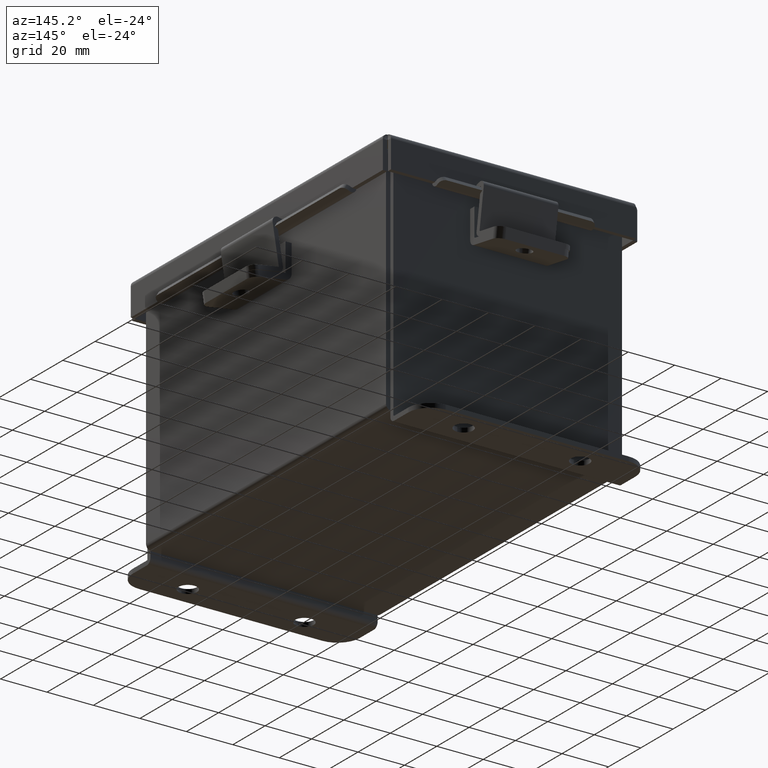
[diagram: clean part render]
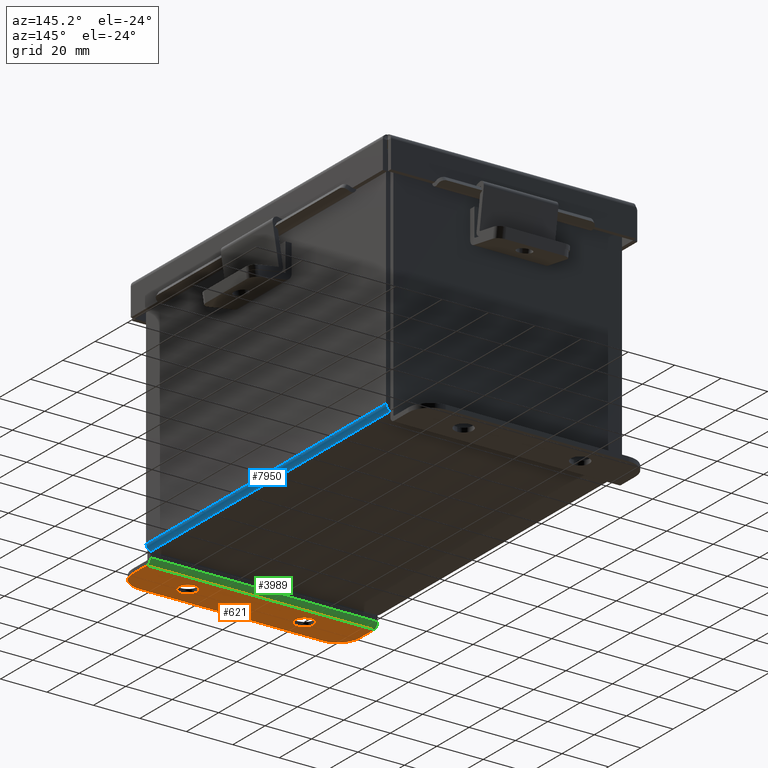
[diagram: same view with three faces highlighted in distinct colors, each labeled with its STEP entity id]
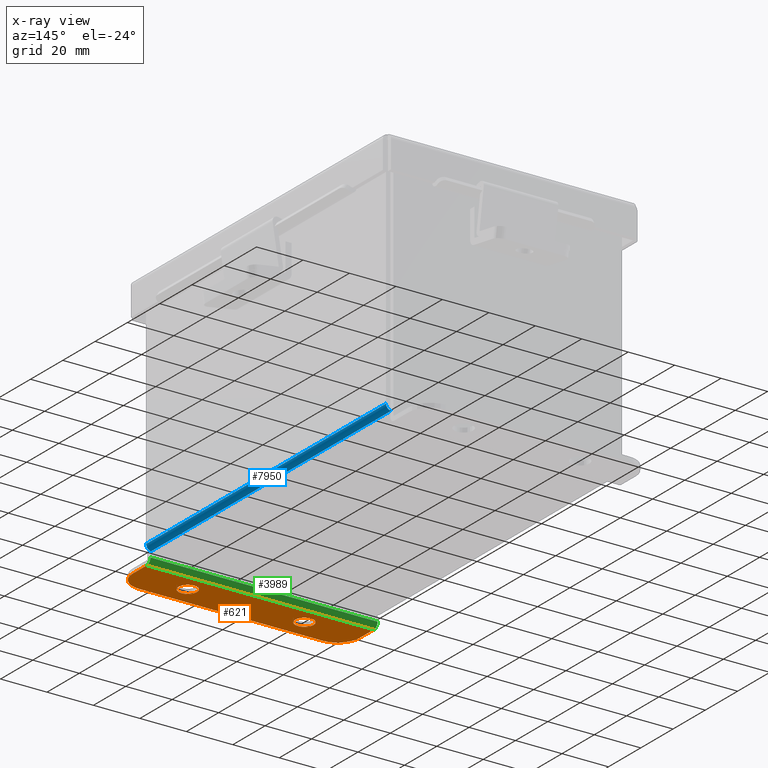
[diagram: x-ray of the same camera — body ghosted, the three highlighted faces saturated]
A machine part, auxiliary view with three faces highlighted in distinct colors.
The next image is the same camera in x-ray (body ghosted, the three faces saturated) — at least one of them is partly hidden behind the body in this view.
Their STEP definitions:

[orange] entity #621 — the highlighted planar face has unit normal (0, -0, 1).
#10 = AXIS2_PLACEMENT_3D ( 'NONE', #2350, #7556, #3093 ) ;
#343 = CARTESIAN_POINT ( 'NONE',  ( -0.9878000000000014500, 0.3628000000000008400, -2.187000000000003800 ) ) ;
#355 = EDGE_CURVE ( 'NONE', #8607, #3298, #492, .T. ) ;
#481 = DIRECTION ( 'NONE',  ( 0.0000000000000000000, 1.000000000000000000, -3.502369222646487000E-015 ) ) ;
#488 = CIRCLE ( 'NONE', #4836, 0.3750000000000000600 ) ;
#492 = CIRCLE ( 'NONE', #7430, 0.1560000000000001900 ) ;
#587 = ORIENTED_EDGE ( 'NONE', *, *, #4265, .T. ) ;
#609 = FACE_BOUND ( 'NONE', #774, .T. ) ;
#621 = ADVANCED_FACE ( 'NONE', ( #609, #4770, #6532 ), #8657, .F. ) ;
#774 = EDGE_LOOP ( 'NONE', ( #8233, #1580 ) ) ;
#1086 = DIRECTION ( 'NONE',  ( 0.0000000000000000000, 1.000000000000000000, -3.502369222646487000E-015 ) ) ;
#1104 = CARTESIAN_POINT ( 'NONE',  ( 1.925300000000000500, -2.185478394931410600E-015, -2.187000000000001200 ) ) ;
#1234 = LINE ( 'NONE', #2368, #6933 ) ;
#1336 = VERTEX_POINT ( 'NONE', #5147 ) ;
#1424 = EDGE_CURVE ( 'NONE', #9117, #3527, #488, .T. ) ;
#1425 = AXIS2_PLACEMENT_3D ( 'NONE', #1664, #6866, #2404 ) ;
#1482 = CARTESIAN_POINT ( 'NONE',  ( 1.925300000000000500, 0.3628000000000041200, -2.187000000000002100 ) ) ;
#1566 = ORIENTED_EDGE ( 'NONE', *, *, #2728, .T. ) ;
#1580 = ORIENTED_EDGE ( 'NONE', *, *, #1899, .F. ) ;
#1664 = CARTESIAN_POINT ( 'NONE',  ( -1.550299999999998500, 0.3628000000000002900, -2.187000000000003800 ) ) ;
#1899 = EDGE_CURVE ( 'NONE', #2493, #3293, #7099, .T. ) ;
#1969 = CARTESIAN_POINT ( 'NONE',  ( 0.0000000000000000000, -2.731847993664263200E-015, -2.187000000000000700 ) ) ;
#2350 = CARTESIAN_POINT ( 'NONE',  ( -0.9878000000000014500, 0.3628000000000008400, -2.187000000000003800 ) ) ;
#2361 = ORIENTED_EDGE ( 'NONE', *, *, #355, .F. ) ;
#2368 = CARTESIAN_POINT ( 'NONE',  ( 2.035385365534024800E-024, 0.7378000000000043400, -2.187000000000003400 ) ) ;
#2370 = EDGE_CURVE ( 'NONE', #3923, #1336, #9524, .T. ) ;
#2404 = DIRECTION ( 'NONE',  ( 0.0000000000000000000, -1.000000000000000000, 3.642463991552350200E-015 ) ) ;
#2406 = CARTESIAN_POINT ( 'NONE',  ( 1.550300000000000500, 0.7378000000000043400, -2.187000000000005600 ) ) ;
#2493 = VERTEX_POINT ( 'NONE', #5954 ) ;
#2523 = CARTESIAN_POINT ( 'NONE',  ( -1.925299999999999300, 0.3628000000000002900, -2.187000000000002100 ) ) ;
#2626 = CARTESIAN_POINT ( 'NONE',  ( -1.925299999999999300, -6.556435184794231700E-015, -2.187000000000000700 ) ) ;
#2680 = CARTESIAN_POINT ( 'NONE',  ( 0.9877999999999992300, 0.2068000000000039500, -2.187000000000003400 ) ) ;
#2728 = EDGE_CURVE ( 'NONE', #3527, #1336, #6730, .T. ) ;
#3032 = CARTESIAN_POINT ( 'NONE',  ( 1.550300000000000500, 0.3628000000000041200, -2.187000000000003800 ) ) ;
#3093 = DIRECTION ( 'NONE',  ( 0.0000000000000000000, 1.000000000000000000, -3.502369222646487000E-015 ) ) ;
#3167 = CARTESIAN_POINT ( 'NONE',  ( 0.9877999999999981200, 0.3628000000000041200, -2.187000000000003800 ) ) ;
#3293 = VERTEX_POINT ( 'NONE', #4920 ) ;
#3298 = VERTEX_POINT ( 'NONE', #2680 ) ;
#3527 = VERTEX_POINT ( 'NONE', #1482 ) ;
#3571 = EDGE_LOOP ( 'NONE', ( #2361, #4969 ) ) ;
#3696 = EDGE_CURVE ( 'NONE', #3293, #2493, #5663, .T. ) ;
#3771 = DIRECTION ( 'NONE',  ( 0.0000000000000000000, -1.000000000000000000, 3.642463991552350200E-015 ) ) ;
#3839 = DIRECTION ( 'NONE',  ( 1.000000000000000000, 4.910036603141682400E-031, 0.0000000000000000000 ) ) ;
#3916 = DIRECTION ( 'NONE',  ( 0.0000000000000000000, 1.000000000000000000, -3.502369222646487000E-015 ) ) ;
#3923 = VERTEX_POINT ( 'NONE', #6475 ) ;
#4161 = ORIENTED_EDGE ( 'NONE', *, *, #1424, .T. ) ;
#4205 = DIRECTION ( 'NONE',  ( -1.555753819465285400E-061, 3.332425039709726500E-015, 1.000000000000000000 ) ) ;
#4265 = EDGE_CURVE ( 'NONE', #8317, #9117, #1234, .T. ) ;
#4359 = AXIS2_PLACEMENT_3D ( 'NONE', #343, #5528, #1086 ) ;
#4770 = FACE_BOUND ( 'NONE', #3571, .T. ) ;
#4836 = AXIS2_PLACEMENT_3D ( 'NONE', #3032, #8234, #3771 ) ;
#4914 = DIRECTION ( 'NONE',  ( 0.0000000000000000000, -3.362274453740631800E-015, -1.000000000000000000 ) ) ;
#4920 = CARTESIAN_POINT ( 'NONE',  ( -0.9878000000000014500, 0.5188000000000010400, -2.187000000000004700 ) ) ;
#4969 = ORIENTED_EDGE ( 'NONE', *, *, #8754, .F. ) ;
#5100 = AXIS2_PLACEMENT_3D ( 'NONE', #9361, #4914, #481 ) ;
#5147 = CARTESIAN_POINT ( 'NONE',  ( 1.925300000000000500, 0.01300000000000393200, -2.187000000000002900 ) ) ;
#5219 = VECTOR ( 'NONE', #6925, 39.37007874015748100 ) ;
#5528 = DIRECTION ( 'NONE',  ( 0.0000000000000000000, -3.362274453740631800E-015, -1.000000000000000000 ) ) ;
#5598 = EDGE_CURVE ( 'NONE', #3923, #6208, #6137, .T. ) ;
#5663 = CIRCLE ( 'NONE', #4359, 0.1560000000000001900 ) ;
#5902 = VECTOR ( 'NONE', #7098, 39.37007874015748100 ) ;
#5954 = CARTESIAN_POINT ( 'NONE',  ( -0.9878000000000003400, 0.2068000000000006800, -2.187000000000003400 ) ) ;
#6079 = CIRCLE ( 'NONE', #5100, 0.1560000000000001900 ) ;
#6122 = CARTESIAN_POINT ( 'NONE',  ( 0.9877999999999981200, 0.5188000000000042600, -2.187000000000004700 ) ) ;
#6137 = LINE ( 'NONE', #2626, #5902 ) ;
#6208 = VERTEX_POINT ( 'NONE', #2523 ) ;
#6361 = ORIENTED_EDGE ( 'NONE', *, *, #5598, .T. ) ;
#6409 = AXIS2_PLACEMENT_3D ( 'NONE', #1969, #4205, #9403 ) ;
#6475 = CARTESIAN_POINT ( 'NONE',  ( -1.925299999999999300, 0.01300000000000065300, -2.187000000000000700 ) ) ;
#6532 = FACE_OUTER_BOUND ( 'NONE', #7835, .T. ) ;
#6641 = EDGE_CURVE ( 'NONE', #6208, #8317, #7627, .T. ) ;
#6730 = LINE ( 'NONE', #1104, #5219 ) ;
#6866 = DIRECTION ( 'NONE',  ( -0.0000000000000000000, -3.332425039709726500E-015, -1.000000000000000000 ) ) ;
#6925 = DIRECTION ( 'NONE',  ( -3.994427860841574400E-031, -1.000000000000000000, 3.332425039709726500E-015 ) ) ;
#6933 = VECTOR ( 'NONE', #3839, 39.37007874015748100 ) ;
#7098 = DIRECTION ( 'NONE',  ( 3.994427860841574400E-031, 1.000000000000000000, -3.332425039709726500E-015 ) ) ;
#7099 = CIRCLE ( 'NONE', #10, 0.1560000000000001900 ) ;
#7430 = AXIS2_PLACEMENT_3D ( 'NONE', #3167, #8376, #3916 ) ;
#7553 = VECTOR ( 'NONE', #8048, 39.37007874015748100 ) ;
#7556 = DIRECTION ( 'NONE',  ( 0.0000000000000000000, -3.362274453740631800E-015, -1.000000000000000000 ) ) ;
#7627 = CIRCLE ( 'NONE', #1425, 0.3750000000000000600 ) ;
#7835 = EDGE_LOOP ( 'NONE', ( #6361, #7948, #587, #4161, #1566, #8028 ) ) ;
#7948 = ORIENTED_EDGE ( 'NONE', *, *, #6641, .T. ) ;
#8028 = ORIENTED_EDGE ( 'NONE', *, *, #2370, .F. ) ;
#8048 = DIRECTION ( 'NONE',  ( 1.000000000000000000, 4.910036603141682400E-031, -0.0000000000000000000 ) ) ;
#8077 = CARTESIAN_POINT ( 'NONE',  ( 1.925300000000000500, 0.01300000000000447800, -2.187000000000002900 ) ) ;
#8233 = ORIENTED_EDGE ( 'NONE', *, *, #3696, .F. ) ;
#8234 = DIRECTION ( 'NONE',  ( -0.0000000000000000000, -3.332425039709726500E-015, -1.000000000000000000 ) ) ;
#8317 = VERTEX_POINT ( 'NONE', #8658 ) ;
#8376 = DIRECTION ( 'NONE',  ( 0.0000000000000000000, -3.362274453740631800E-015, -1.000000000000000000 ) ) ;
#8607 = VERTEX_POINT ( 'NONE', #6122 ) ;
#8657 = PLANE ( 'NONE',  #6409 ) ;
#8658 = CARTESIAN_POINT ( 'NONE',  ( -1.550299999999998500, 0.7378000000000000100, -2.187000000000003400 ) ) ;
#8754 = EDGE_CURVE ( 'NONE', #3298, #8607, #6079, .T. ) ;
#9117 = VERTEX_POINT ( 'NONE', #2406 ) ;
#9361 = CARTESIAN_POINT ( 'NONE',  ( 0.9877999999999981200, 0.3628000000000041200, -2.187000000000003800 ) ) ;
#9403 = DIRECTION ( 'NONE',  ( -3.994427860841588400E-031, -1.000000000000000000, 3.332425039709726500E-015 ) ) ;
#9524 = LINE ( 'NONE', #8077, #7553 ) ;

[blue] entity #7950 — the highlighted cylindrical surface (edge-blend (fillet) strip) has radius 2.2276 mm, axis along (0, 1, 0).
#130 = CARTESIAN_POINT ( 'NONE',  ( 1.912299999999999400, 2.925299999999999600, 0.01299999999999987600 ) ) ;
#290 = CYLINDRICAL_SURFACE ( 'NONE', #8162, 0.08770000000000000000 ) ;
#465 = DIRECTION ( 'NONE',  ( 0.0000000000000000000, 0.0000000000000000000, 1.000000000000000000 ) ) ;
#559 = ORIENTED_EDGE ( 'NONE', *, *, #2385, .F. ) ;
#634 = AXIS2_PLACEMENT_3D ( 'NONE', #8109, #3641, #8848 ) ;
#700 = LINE ( 'NONE', #3559, #5912 ) ;
#876 = DIRECTION ( 'NONE',  ( 0.0000000000000000000, 1.000000000000000000, 0.0000000000000000000 ) ) ;
#1579 = VERTEX_POINT ( 'NONE', #3504 ) ;
#2122 = ORIENTED_EDGE ( 'NONE', *, *, #2905, .T. ) ;
#2385 = EDGE_CURVE ( 'NONE', #1579, #6504, #7319, .T. ) ;
#2905 = EDGE_CURVE ( 'NONE', #1579, #3769, #3586, .T. ) ;
#3504 = CARTESIAN_POINT ( 'NONE',  ( 1.999999999999999300, 2.925299999999999100, 0.01299999999999956900 ) ) ;
#3559 = CARTESIAN_POINT ( 'NONE',  ( 1.912299999999999400, 2.925299999999999600, -0.07470000000000022500 ) ) ;
#3586 = LINE ( 'NONE', #8706, #5327 ) ;
#3641 = DIRECTION ( 'NONE',  ( 0.0000000000000000000, 1.000000000000000000, 0.0000000000000000000 ) ) ;
#3714 = CARTESIAN_POINT ( 'NONE',  ( 1.912299999999999400, 2.925299999999999100, -0.07470000000000022500 ) ) ;
#3732 = DIRECTION ( 'NONE',  ( 1.000000000000000000, 0.0000000000000000000, -3.480030137311053900E-015 ) ) ;
#3769 = VERTEX_POINT ( 'NONE', #7810 ) ;
#3886 = CIRCLE ( 'NONE', #7338, 0.08770000000000009700 ) ;
#4401 = ORIENTED_EDGE ( 'NONE', *, *, #7713, .F. ) ;
#4900 = DIRECTION ( 'NONE',  ( -0.0000000000000000000, -1.000000000000000000, -0.0000000000000000000 ) ) ;
#4966 = DIRECTION ( 'NONE',  ( -0.0000000000000000000, -1.000000000000000000, -0.0000000000000000000 ) ) ;
#5019 = EDGE_CURVE ( 'NONE', #6504, #7336, #700, .T. ) ;
#5055 = DIRECTION ( 'NONE',  ( -0.0000000000000000000, -1.000000000000000000, -0.0000000000000000000 ) ) ;
#5327 = VECTOR ( 'NONE', #4966, 39.37007874015748100 ) ;
#5912 = VECTOR ( 'NONE', #5055, 39.37007874015748100 ) ;
#6303 = CARTESIAN_POINT ( 'NONE',  ( 1.912299999999999400, -2.925300000000000000, -0.07470000000000000300 ) ) ;
#6504 = VERTEX_POINT ( 'NONE', #3714 ) ;
#6597 = ORIENTED_EDGE ( 'NONE', *, *, #5019, .F. ) ;
#7319 = CIRCLE ( 'NONE', #634, 0.08770000000000009700 ) ;
#7336 = VERTEX_POINT ( 'NONE', #6303 ) ;
#7338 = AXIS2_PLACEMENT_3D ( 'NONE', #9348, #4900, #465 ) ;
#7678 = EDGE_LOOP ( 'NONE', ( #6597, #559, #2122, #4401 ) ) ;
#7713 = EDGE_CURVE ( 'NONE', #7336, #3769, #3886, .T. ) ;
#7810 = CARTESIAN_POINT ( 'NONE',  ( 1.999999999999999300, -2.925300000000000500, 0.01299999999999956900 ) ) ;
#7950 = ADVANCED_FACE ( 'NONE', ( #8197 ), #290, .T. ) ;
#8109 = CARTESIAN_POINT ( 'NONE',  ( 1.912299999999999400, 2.925299999999999100, 0.01299999999999987600 ) ) ;
#8162 = AXIS2_PLACEMENT_3D ( 'NONE', #130, #876, #3732 ) ;
#8197 = FACE_OUTER_BOUND ( 'NONE', #7678, .T. ) ;
#8706 = CARTESIAN_POINT ( 'NONE',  ( 1.999999999999999300, -2.925300000000000500, 0.01299999999999956900 ) ) ;
#8848 = DIRECTION ( 'NONE',  ( 0.0000000000000000000, 0.0000000000000000000, 1.000000000000000000 ) ) ;
#9348 = CARTESIAN_POINT ( 'NONE',  ( 1.912299999999999400, -2.925300000000000500, 0.01299999999999987600 ) ) ;

[green] entity #3989 — the highlighted cylindrical surface (edge-blend (fillet) strip) has radius 2.2276 mm, axis along (1, 0, -0).
#18 = ORIENTED_EDGE ( 'NONE', *, *, #1744, .F. ) ;
#812 = CARTESIAN_POINT ( 'NONE',  ( 1.925299999999998200, 0.01300000000000393200, -2.099300000000003100 ) ) ;
#1263 = EDGE_LOOP ( 'NONE', ( #18, #1350, #1562, #6712 ) ) ;
#1336 = VERTEX_POINT ( 'NONE', #5147 ) ;
#1350 = ORIENTED_EDGE ( 'NONE', *, *, #5736, .F. ) ;
#1549 = DIRECTION ( 'NONE',  ( 0.0000000000000000000, 0.0000000000000000000, 1.000000000000000000 ) ) ;
#1562 = ORIENTED_EDGE ( 'NONE', *, *, #2370, .T. ) ;
#1744 = EDGE_CURVE ( 'NONE', #2791, #6034, #4537, .T. ) ;
#2370 = EDGE_CURVE ( 'NONE', #3923, #1336, #9524, .T. ) ;
#2684 = AXIS2_PLACEMENT_3D ( 'NONE', #7973, #4294, #9485 ) ;
#2791 = VERTEX_POINT ( 'NONE', #5619 ) ;
#3329 = CYLINDRICAL_SURFACE ( 'NONE', #2684, 0.08770000000000000000 ) ;
#3569 = FACE_OUTER_BOUND ( 'NONE', #1263, .T. ) ;
#3578 = CARTESIAN_POINT ( 'NONE',  ( -1.925300000000001300, 0.01300000000000010700, -2.099300000000000800 ) ) ;
#3923 = VERTEX_POINT ( 'NONE', #6475 ) ;
#3989 = ADVANCED_FACE ( 'NONE', ( #3569 ), #3329, .T. ) ;
#4294 = DIRECTION ( 'NONE',  ( -1.000000000000000000, -4.910036603141682400E-031, 0.0000000000000000000 ) ) ;
#4320 = DIRECTION ( 'NONE',  ( 0.0000000000000000000, 0.0000000000000000000, 1.000000000000000000 ) ) ;
#4537 = LINE ( 'NONE', #8122, #7798 ) ;
#5147 = CARTESIAN_POINT ( 'NONE',  ( 1.925300000000000500, 0.01300000000000393200, -2.187000000000002900 ) ) ;
#5154 = DIRECTION ( 'NONE',  ( 1.000000000000000000, 4.910036603141682400E-031, -0.0000000000000000000 ) ) ;
#5166 = EDGE_CURVE ( 'NONE', #6034, #1336, #8703, .T. ) ;
#5453 = AXIS2_PLACEMENT_3D ( 'NONE', #3578, #8771, #4320 ) ;
#5619 = CARTESIAN_POINT ( 'NONE',  ( -1.925300000000001300, -0.07470000000000015500, -2.099300000000000800 ) ) ;
#5736 = EDGE_CURVE ( 'NONE', #3923, #2791, #8919, .T. ) ;
#5988 = DIRECTION ( 'NONE',  ( 1.000000000000000000, 4.910036603141682400E-031, -0.0000000000000000000 ) ) ;
#6034 = VERTEX_POINT ( 'NONE', #6074 ) ;
#6074 = CARTESIAN_POINT ( 'NONE',  ( 1.925299999999998200, -0.07469999999999633900, -2.099300000000000800 ) ) ;
#6321 = AXIS2_PLACEMENT_3D ( 'NONE', #812, #5988, #1549 ) ;
#6475 = CARTESIAN_POINT ( 'NONE',  ( -1.925299999999999300, 0.01300000000000065300, -2.187000000000000700 ) ) ;
#6712 = ORIENTED_EDGE ( 'NONE', *, *, #5166, .F. ) ;
#7553 = VECTOR ( 'NONE', #8048, 39.37007874015748100 ) ;
#7798 = VECTOR ( 'NONE', #5154, 39.37007874015748100 ) ;
#7973 = CARTESIAN_POINT ( 'NONE',  ( -1.925300000000001300, 0.01300000000000010700, -2.099300000000000800 ) ) ;
#8048 = DIRECTION ( 'NONE',  ( 1.000000000000000000, 4.910036603141682400E-031, -0.0000000000000000000 ) ) ;
#8077 = CARTESIAN_POINT ( 'NONE',  ( 1.925300000000000500, 0.01300000000000447800, -2.187000000000002900 ) ) ;
#8122 = CARTESIAN_POINT ( 'NONE',  ( -1.925300000000001300, -0.07470000000000015500, -2.099300000000000800 ) ) ;
#8703 = CIRCLE ( 'NONE', #6321, 0.08770000000000000000 ) ;
#8771 = DIRECTION ( 'NONE',  ( -1.000000000000000000, -4.910036603141682400E-031, 0.0000000000000000000 ) ) ;
#8919 = CIRCLE ( 'NONE', #5453, 0.08770000000000000000 ) ;
#9485 = DIRECTION ( 'NONE',  ( 0.0000000000000000000, -3.334014886794506100E-015, -1.000000000000000000 ) ) ;
#9524 = LINE ( 'NONE', #8077, #7553 ) ;